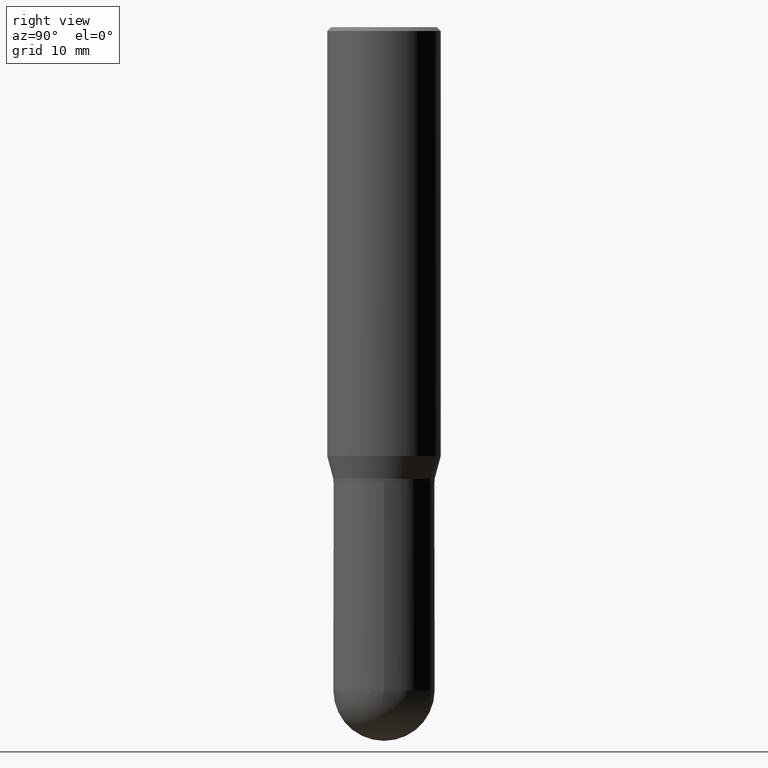
[diagram: clean part render]
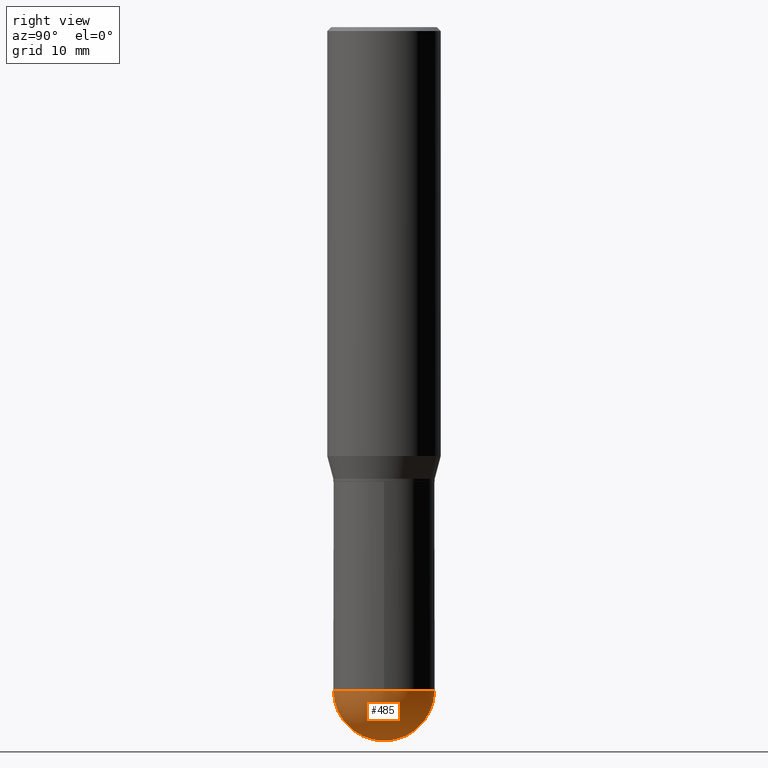
[diagram: same view with one face highlighted and labeled with its STEP entity id]
A machine part, right view. The second image highlights one B-rep face of the part: STEP entity #485.
In plain terms, the highlighted spherical surface has radius 4.9606 mm.
Its self-contained STEP definition (entity closure, byte-faithful):
#17 = AXIS2_PLACEMENT_3D ( 'NONE', #477, #331, #291 ) ;
#25 = DIRECTION ( 'NONE',  ( -7.105427357601001070E-15, -1.000000000000000000, 0.000000000000000000 ) ) ;
#33 = CARTESIAN_POINT ( 'NONE',  ( 6.252116918762979989E-29, -8.912988558351247541E-15, -2.554699999999999971 ) ) ;
#47 = CARTESIAN_POINT ( 'NONE',  ( 6.738067675424772833E-29, -9.582916187833640258E-15, -2.750000000000000000 ) ) ;
#62 = EDGE_CURVE ( 'NONE', #288, #221, #70, .T. ) ;
#70 = CIRCLE ( 'NONE', #17, 0.1953000000000000291 ) ;
#121 = VERTEX_POINT ( 'NONE', #440 ) ;
#123 = ORIENTED_EDGE ( 'NONE', *, *, #206, .F. ) ;
#136 = EDGE_CURVE ( 'NONE', #288, #121, #373, .T. ) ;
#137 = VERTEX_POINT ( 'NONE', #375 ) ;
#155 = AXIS2_PLACEMENT_3D ( 'NONE', #338, #184, #25 ) ;
#157 = AXIS2_PLACEMENT_3D ( 'NONE', #343, #492, #187 ) ;
#164 = EDGE_CURVE ( 'NONE', #121, #137, #254, .T. ) ;
#171 = AXIS2_PLACEMENT_3D ( 'NONE', #420, #448, #270 ) ;
#184 = DIRECTION ( 'NONE',  ( -1.000000000000000000, 7.105427357601001070E-15, -4.926315508542082329E-29 ) ) ;
#187 = DIRECTION ( 'NONE',  ( 1.000000000000000000, -6.982962677686266711E-15, 0.000000000000000000 ) ) ;
#206 = EDGE_CURVE ( 'NONE', #137, #221, #310, .T. ) ;
#207 = ORIENTED_EDGE ( 'NONE', *, *, #164, .F. ) ;
#221 = VERTEX_POINT ( 'NONE', #307 ) ;
#230 = DIRECTION ( 'NONE',  ( 6.982962677686266711E-15, 1.000000000000000000, -2.797591391361252376E-15 ) ) ;
#254 = CIRCLE ( 'NONE', #157, 0.1953000000000000569 ) ;
#266 = ORIENTED_EDGE ( 'NONE', *, *, #62, .T. ) ;
#270 = DIRECTION ( 'NONE',  ( 1.000000000000000000, -6.982962677686266711E-15, 0.000000000000000000 ) ) ;
#288 = VERTEX_POINT ( 'NONE', #47 ) ;
#291 = DIRECTION ( 'NONE',  ( 6.982962677686266711E-15, 1.000000000000000000, 0.000000000000000000 ) ) ;
#307 = CARTESIAN_POINT ( 'NONE',  ( 1.363772610952190606E-15, 0.1952999999999911473, -2.554700000000000415 ) ) ;
#310 = CIRCLE ( 'NONE', #171, 0.1953000000000000569 ) ;
#331 = DIRECTION ( 'NONE',  ( 1.000000000000000000, -6.982962677686265922E-15, 4.883557194083112340E-29 ) ) ;
#338 = CARTESIAN_POINT ( 'NONE',  ( 6.252116918762979989E-29, -8.912988558351247541E-15, -2.554699999999999971 ) ) ;
#343 = CARTESIAN_POINT ( 'NONE',  ( 6.247439159161168638E-29, -8.919687376342582955E-15, -2.554699999999999971 ) ) ;
#350 = DIRECTION ( 'NONE',  ( -1.000000000000000000, 6.982962677686266711E-15, -4.883557194083112901E-29 ) ) ;
#364 = AXIS2_PLACEMENT_3D ( 'NONE', #33, #350, #230 ) ;
#373 = CIRCLE ( 'NONE', #155, 0.1953000000000000291 ) ;
#375 = CARTESIAN_POINT ( 'NONE',  ( 0.1953000000000000569, -8.878662470611173282E-15, -2.554699999999999971 ) ) ;
#384 = EDGE_LOOP ( 'NONE', ( #452, #266, #123, #207 ) ) ;
#390 = SPHERICAL_SURFACE ( 'NONE', #364, 0.1953000000000000291 ) ;
#420 = CARTESIAN_POINT ( 'NONE',  ( 6.247439159161168638E-29, -8.919687376342582955E-15, -2.554699999999999971 ) ) ;
#440 = CARTESIAN_POINT ( 'NONE',  ( -1.387689962939413353E-15, -0.1953000000000089664, -2.554699999999999527 ) ) ;
#448 = DIRECTION ( 'NONE',  ( -2.445468806185136597E-29, 3.491481338843145583E-15, 1.000000000000000000 ) ) ;
#452 = ORIENTED_EDGE ( 'NONE', *, *, #136, .F. ) ;
#477 = CARTESIAN_POINT ( 'NONE',  ( 6.252116918762979989E-29, -8.912988558351247541E-15, -2.554699999999999971 ) ) ;
#485 = ADVANCED_FACE ( 'NONE', ( #497 ), #390, .T. ) ;
#492 = DIRECTION ( 'NONE',  ( -2.445468806185136597E-29, 3.491481338843145583E-15, 1.000000000000000000 ) ) ;
#497 = FACE_OUTER_BOUND ( 'NONE', #384, .T. ) ;